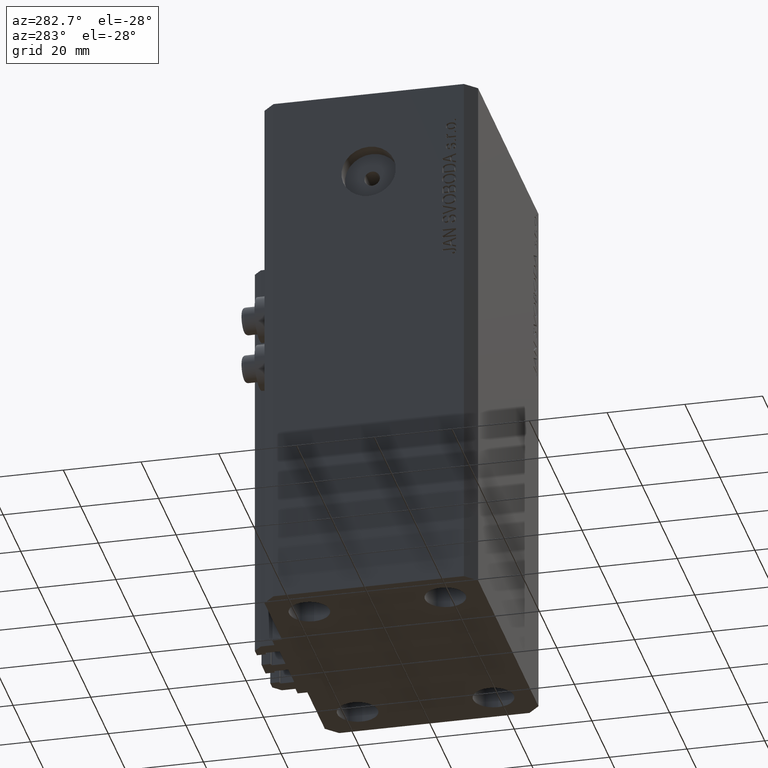
[diagram: clean part render]
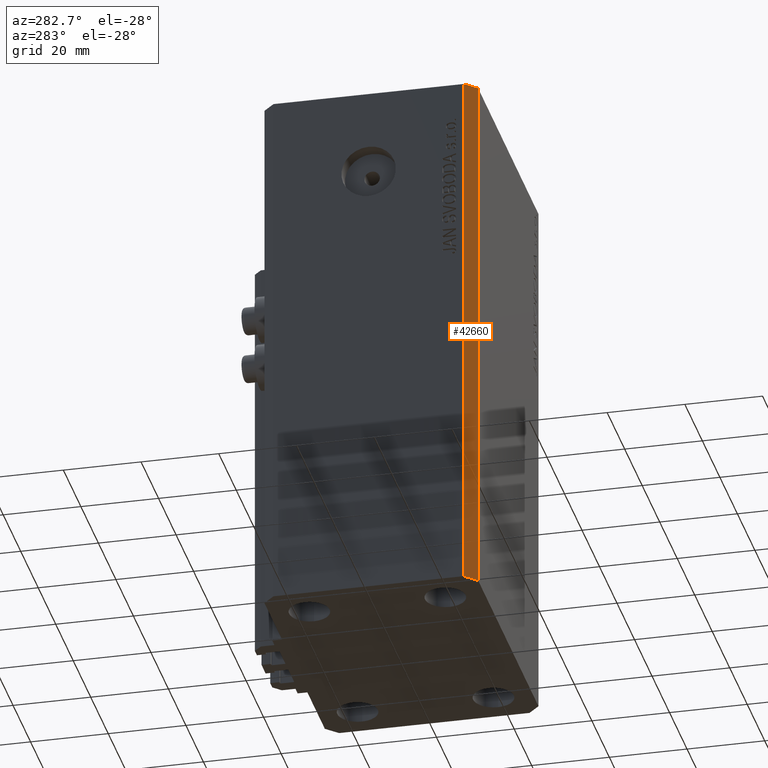
[diagram: same view with one face highlighted and labeled with its STEP entity id]
A machine part, auxiliary view. The second image highlights one B-rep face of the part: STEP entity #42660.
In plain terms, the highlighted planar face has unit normal (-0.7071, -0.7071, 0).
Its self-contained STEP definition (entity closure, byte-faithful):
#1618 = DIRECTION ( 'NONE',  ( 0.000000000000000000, 0.000000000000000000, 1.000000000000000000 ) ) ;
#2913 = CARTESIAN_POINT ( 'NONE',  ( -37.49999999999999289, -24.50000000000000000, 0.000000000000000000 ) ) ;
#3399 = CARTESIAN_POINT ( 'NONE',  ( -37.49999999999999289, -24.50000000000000000, -140.0000000000000000 ) ) ;
#3615 = ORIENTED_EDGE ( 'NONE', *, *, #38054, .F. ) ;
#4170 = ORIENTED_EDGE ( 'NONE', *, *, #35768, .F. ) ;
#4625 = EDGE_CURVE ( 'NONE', #28131, #16003, #8769, .T. ) ;
#5056 = FACE_OUTER_BOUND ( 'NONE', #26468, .T. ) ;
#5280 = DIRECTION ( 'NONE',  ( -0.7071067811865466846, -0.7071067811865483499, 0.000000000000000000 ) ) ;
#5612 = DIRECTION ( 'NONE',  ( 0.000000000000000000, 0.000000000000000000, 1.000000000000000000 ) ) ;
#8769 = LINE ( 'NONE', #24055, #22070 ) ;
#9964 = EDGE_CURVE ( 'NONE', #25577, #28131, #32081, .T. ) ;
#10258 = ORIENTED_EDGE ( 'NONE', *, *, #4625, .T. ) ;
#10580 = DIRECTION ( 'NONE',  ( 0.7071067811865483499, -0.7071067811865466846, 0.000000000000000000 ) ) ;
#15651 = VECTOR ( 'NONE', #5612, 1000.000000000000000 ) ;
#16003 = VERTEX_POINT ( 'NONE', #32708 ) ;
#16367 = LINE ( 'NONE', #3399, #15651 ) ;
#18512 = ORIENTED_EDGE ( 'NONE', *, *, #9964, .T. ) ;
#19611 = PLANE ( 'NONE',  #43897 ) ;
#19844 = DIRECTION ( 'NONE',  ( 0.7071067811865483499, -0.7071067811865466846, 0.000000000000000000 ) ) ;
#21724 = CARTESIAN_POINT ( 'NONE',  ( -34.49999999999998579, -27.49999999999999645, -140.0000000000000000 ) ) ;
#22070 = VECTOR ( 'NONE', #1618, 1000.000000000000000 ) ;
#24055 = CARTESIAN_POINT ( 'NONE',  ( -34.49999999999998579, -27.49999999999999645, -140.0000000000000000 ) ) ;
#25577 = VERTEX_POINT ( 'NONE', #36034 ) ;
#26468 = EDGE_LOOP ( 'NONE', ( #4170, #3615, #18512, #10258 ) ) ;
#26798 = LINE ( 'NONE', #2913, #33146 ) ;
#28131 = VERTEX_POINT ( 'NONE', #21724 ) ;
#31161 = VERTEX_POINT ( 'NONE', #31973 ) ;
#31849 = CARTESIAN_POINT ( 'NONE',  ( -37.49999999999999289, -24.50000000000000000, -140.0000000000000000 ) ) ;
#31973 = CARTESIAN_POINT ( 'NONE',  ( -37.49999999999999289, -24.50000000000000000, 0.000000000000000000 ) ) ;
#32081 = LINE ( 'NONE', #31849, #38993 ) ;
#32708 = CARTESIAN_POINT ( 'NONE',  ( -34.49999999999998579, -27.49999999999999645, 0.000000000000000000 ) ) ;
#33146 = VECTOR ( 'NONE', #34901, 1000.000000000000000 ) ;
#34901 = DIRECTION ( 'NONE',  ( 0.7071067811865483499, -0.7071067811865466846, 0.000000000000000000 ) ) ;
#35768 = EDGE_CURVE ( 'NONE', #31161, #16003, #26798, .T. ) ;
#36034 = CARTESIAN_POINT ( 'NONE',  ( -37.49999999999999289, -24.50000000000000000, -140.0000000000000000 ) ) ;
#37980 = CARTESIAN_POINT ( 'NONE',  ( -37.49999999999999289, -24.50000000000000000, -140.0000000000000000 ) ) ;
#38054 = EDGE_CURVE ( 'NONE', #25577, #31161, #16367, .T. ) ;
#38993 = VECTOR ( 'NONE', #10580, 1000.000000000000000 ) ;
#42660 = ADVANCED_FACE ( 'NONE', ( #5056 ), #19611, .T. ) ;
#43897 = AXIS2_PLACEMENT_3D ( 'NONE', #37980, #5280, #19844 ) ;